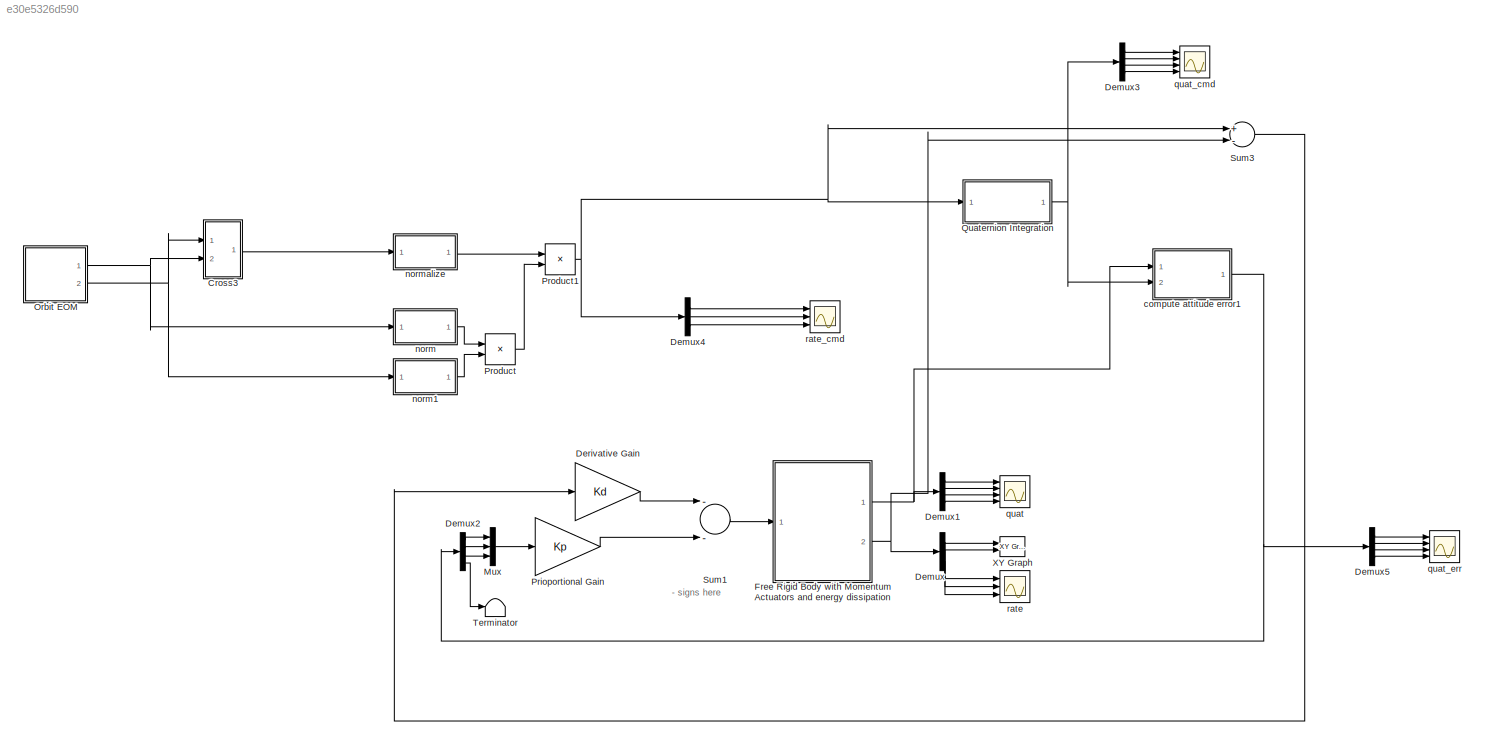
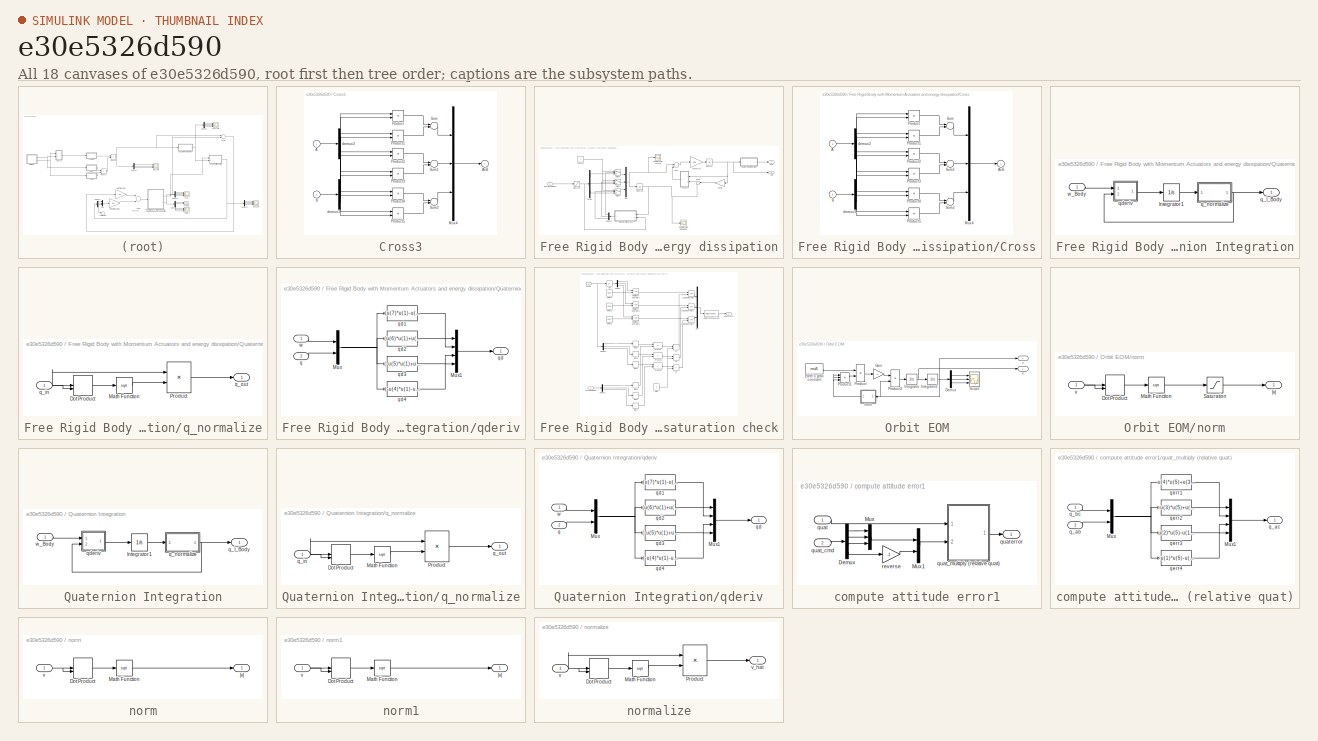
[diagram: thumbnail index - all 18 canvases of the model, root first then tree order]
MODEL slx_e30e5326d590
KIND model
CONFIG AbsTol = auto
CONFIG EnableMultiTasking = on
CONFIG FixedStep = auto
CONFIG MaxStep = auto
CONFIG MinStep = auto
CONFIG RelTol = 1e-6
CONFIG SampleTimeConstraint = Unconstrained
CONFIG Solver = ode45
CONFIG SolverName = ode45
CONFIG StartTime = 0.0
CONFIG StopTime = 20000
WORKSPACE source: external: MATLAB File  (data not in archive)
BLOCK [SubSystem] Cross3
  Ports = [2, 1]
  RequestExecContextInheritance = off
  Variant = off
BLOCK [Inport] Cross3/A
  IconDisplay = Port number
BLOCK [Outport] Cross3/AxB
  IconDisplay = Port number
  InitialOutput = 0
BLOCK [Inport] Cross3/B
  IconDisplay = Port number
  Port = 2
BLOCK [Mux] Cross3/Mux4
  Inputs = 3
  Ports = [3, 1]
BLOCK [Product] Cross3/Product
  Ports = [2, 1]
  RndMeth = Floor
BLOCK [Product] Cross3/Product1
  Ports = [2, 1]
  RndMeth = Floor
BLOCK [Product] Cross3/Product2
  Ports = [2, 1]
  RndMeth = Floor
BLOCK [Product] Cross3/Product3
  Ports = [2, 1]
  RndMeth = Floor
BLOCK [Product] Cross3/Product4
  Ports = [2, 1]
  RndMeth = Floor
BLOCK [Product] Cross3/Product5
  Ports = [2, 1]
  RndMeth = Floor
BLOCK [Sum] Cross3/Sum
  Inputs = +-
  Ports = [2, 1]
BLOCK [Sum] Cross3/Sum1
  Inputs = +-
  Ports = [2, 1]
BLOCK [Sum] Cross3/Sum2
  Inputs = +-
  Ports = [2, 1]
BLOCK [Demux] Cross3/demux2
  Outputs = 3
  Ports = [1, 3]
BLOCK [Demux] Cross3/demux3
  Outputs = 3
  Ports = [1, 3]
BLOCK [Demux] Demux
  DisplayOption = bar
  Outputs = 3
  Ports = [1, 3]
BLOCK [Demux] Demux1
  DisplayOption = bar
  Ports = [1, 4]
BLOCK [Demux] Demux2
  DisplayOption = bar
  Ports = [1, 4]
BLOCK [Demux] Demux3
  DisplayOption = bar
  Ports = [1, 4]
BLOCK [Demux] Demux4
  DisplayOption = bar
  Outputs = 3
  Ports = [1, 3]
BLOCK [Demux] Demux5
  DisplayOption = bar
  Ports = [1, 4]
BLOCK [Gain] Derivative Gain
  Gain = Kd
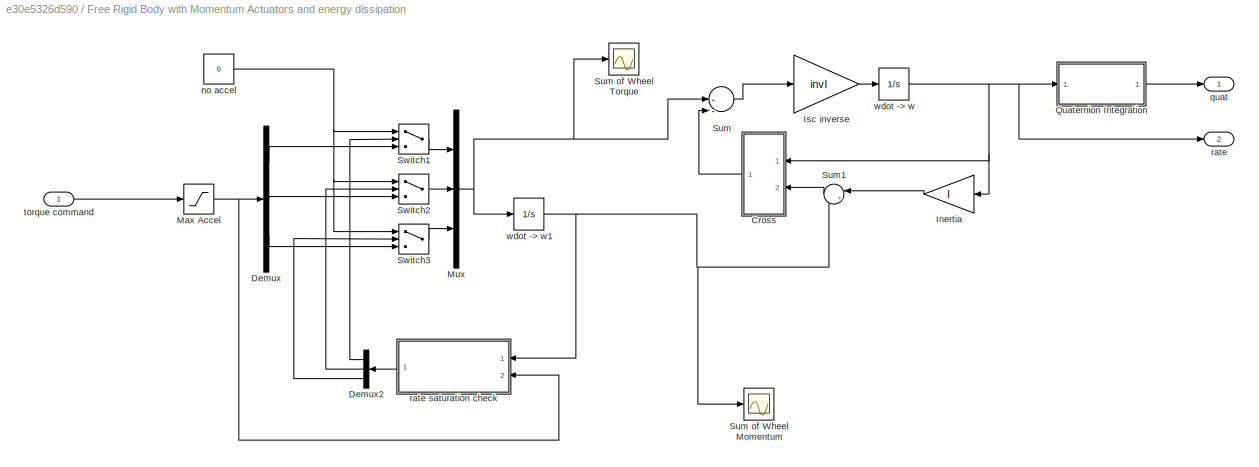
BLOCK [SubSystem] Free Rigid Body with Momentum Actuators and energy dissipation
  Ports = [1, 2]
  RequestExecContextInheritance = off
  Variant = off
BLOCK [SubSystem] Free Rigid Body with Momentum Actuators and energy dissipation/Cross
  Ports = [2, 1]
  RequestExecContextInheritance = off
  Variant = off
BLOCK [Inport] Free Rigid Body with Momentum Actuators and energy dissipation/Cross/A
  IconDisplay = Port number
BLOCK [Outport] Free Rigid Body with Momentum Actuators and energy dissipation/Cross/AxB
  IconDisplay = Port number
  InitialOutput = 0
BLOCK [Inport] Free Rigid Body with Momentum Actuators and energy dissipation/Cross/B
  IconDisplay = Port number
  Port = 2
BLOCK [Mux] Free Rigid Body with Momentum Actuators and energy dissipation/Cross/Mux4
  Inputs = 3
  Ports = [3, 1]
BLOCK [Product] Free Rigid Body with Momentum Actuators and energy dissipation/Cross/Product
  Ports = [2, 1]
  RndMeth = Floor
BLOCK [Product] Free Rigid Body with Momentum Actuators and energy dissipation/Cross/Product1
  Ports = [2, 1]
  RndMeth = Floor
BLOCK [Product] Free Rigid Body with Momentum Actuators and energy dissipation/Cross/Product2
  Ports = [2, 1]
  RndMeth = Floor
BLOCK [Product] Free Rigid Body with Momentum Actuators and energy dissipation/Cross/Product3
  Ports = [2, 1]
  RndMeth = Floor
BLOCK [Product] Free Rigid Body with Momentum Actuators and energy dissipation/Cross/Product4
  Ports = [2, 1]
  RndMeth = Floor
BLOCK [Product] Free Rigid Body with Momentum Actuators and energy dissipation/Cross/Product5
  Ports = [2, 1]
  RndMeth = Floor
BLOCK [Sum] Free Rigid Body with Momentum Actuators and energy dissipation/Cross/Sum
  Inputs = +-
  Ports = [2, 1]
BLOCK [Sum] Free Rigid Body with Momentum Actuators and energy dissipation/Cross/Sum1
  Inputs = +-
  Ports = [2, 1]
BLOCK [Sum] Free Rigid Body with Momentum Actuators and energy dissipation/Cross/Sum2
  Inputs = +-
  Ports = [2, 1]
BLOCK [Demux] Free Rigid Body with Momentum Actuators and energy dissipation/Cross/demux2
  Outputs = 3
  Ports = [1, 3]
BLOCK [Demux] Free Rigid Body with Momentum Actuators and energy dissipation/Cross/demux3
  Outputs = 3
  Ports = [1, 3]
BLOCK [Demux] Free Rigid Body with Momentum Actuators and energy dissipation/Demux
  Outputs = 3
  Ports = [1, 3]
BLOCK [Demux] Free Rigid Body with Momentum Actuators and energy dissipation/Demux2
  Outputs = 3
  Ports = [1, 3]
BLOCK [Gain] Free Rigid Body with Momentum Actuators and energy dissipation/Inertia
  Gain = I
  Multiplication = Matrix(K*u)
BLOCK [Gain] Free Rigid Body with Momentum Actuators and energy dissipation/Isc inverse
  Gain = invI
  Multiplication = Matrix(K*u)
BLOCK [Saturate] Free Rigid Body with Momentum Actuators and energy dissipation/Max Accel
  InputPortMap = u0
  LowerLimit = -accelmax
  Ports = [1, 1]
  UpperLimit = accelmax
BLOCK [Mux] Free Rigid Body with Momentum Actuators and energy dissipation/Mux
  DisplayOption = bar
  Inputs = 3
  Ports = [3, 1]
BLOCK [SubSystem] Free Rigid Body with Momentum Actuators and energy dissipation/Quaternion Integration
  Ports = [1, 1]
  RequestExecContextInheritance = off
  Variant = off
BLOCK [Integrator] Free Rigid Body with Momentum Actuators and energy dissipation/Quaternion Integration/Integrator1
  InitialCondition = q_init
  Ports = [1, 1]
BLOCK [Outport] Free Rigid Body with Momentum Actuators and energy dissipation/Quaternion Integration/q_I_Body
  IconDisplay = Port number
BLOCK [SubSystem] Free Rigid Body with Momentum Actuators and energy dissipation/Quaternion Integration/q_normalize
  Ports = [1, 1]
  RequestExecContextInheritance = off
  Variant = off
BLOCK [DotProduct] Free Rigid Body with Momentum Actuators and energy dissipation/Quaternion Integration/q_normalize/Dot Product
  OutDataTypeStr = Inherit: Inherit via internal rule
BLOCK [Math] Free Rigid Body with Momentum Actuators and energy dissipation/Quaternion Integration/q_normalize/Math Function
  Operator = sqrt
  Ports = [1, 1]
BLOCK [Product] Free Rigid Body with Momentum Actuators and energy dissipation/Quaternion Integration/q_normalize/Product
  Inputs = */
  Ports = [2, 1]
  RndMeth = Floor
BLOCK [Inport] Free Rigid Body with Momentum Actuators and energy dissipation/Quaternion Integration/q_normalize/q_in
  IconDisplay = Port number
  PortDimensions = 4
BLOCK [Outport] Free Rigid Body with Momentum Actuators and energy dissipation/Quaternion Integration/q_normalize/q_out
  IconDisplay = Port number
BLOCK [SubSystem] Free Rigid Body with Momentum Actuators and energy dissipation/Quaternion Integration/qderiv
  Ports = [2, 1]
  RequestExecContextInheritance = off
  Variant = off
BLOCK [Mux] Free Rigid Body with Momentum Actuators and energy dissipation/Quaternion Integration/qderiv/Mux
  DisplayOption = bar
  Inputs = 2
  Ports = [2, 1]
BLOCK [Mux] Free Rigid Body with Momentum Actuators and energy dissipation/Quaternion Integration/qderiv/Mux1
  DisplayOption = bar
  Ports = [4, 1]
BLOCK [Inport] Free Rigid Body with Momentum Actuators and energy dissipation/Quaternion Integration/qderiv/q
  IconDisplay = Port number
  Port = 2
BLOCK [Outport] Free Rigid Body with Momentum Actuators and energy dissipation/Quaternion Integration/qderiv/qd
  IconDisplay = Port number
BLOCK [Fcn] Free Rigid Body with Momentum Actuators and energy dissipation/Quaternion Integration/qderiv/qd1
  Expr = (u(7)*u(1)-u(6)*u(2)+u(5)*u(3))/2
BLOCK [Fcn] Free Rigid Body with Momentum Actuators and energy dissipation/Quaternion Integration/qderiv/qd2
  Expr = (u(6)*u(1)+u(7)*u(2)-u(4)*u(3))/2
BLOCK [Fcn] Free Rigid Body with Momentum Actuators and energy dissipation/Quaternion Integration/qderiv/qd3
  Expr = (-u(5)*u(1)+u(4)*u(2)+u(7)*u(3))/2
BLOCK [Fcn] Free Rigid Body with Momentum Actuators and energy dissipation/Quaternion Integration/qderiv/qd4
  Expr = (-u(4)*u(1)-u(5)*u(2)-u(6)*u(3))/2
BLOCK [Inport] Free Rigid Body with Momentum Actuators and energy dissipation/Quaternion Integration/qderiv/w
  IconDisplay = Port number
BLOCK [Inport] Free Rigid Body with Momentum Actuators and energy dissipation/Quaternion Integration/w_Body
  IconDisplay = Port number
BLOCK [Sum] Free Rigid Body with Momentum Actuators and energy dissipation/Sum
  Inputs = |---
  Ports = [3, 1]
BLOCK [Scope] Free Rigid Body with Momentum Actuators and energy dissipation/Sum of Wheel Momentum
  NumInputPorts = 1
  Ports = [1]
  ScopeSpecificationString = Simulink.scopes.TimeScopeBlockCfg('CurrentConfiguration', extmgr.ConfigurationSet(extmgr.Configuration('Core','General UI',true),extmgr.Configuration('Core','Source UI',true),extmgr.Configuration('Sources','WiredSimulink',true,'DataLoggingVariableName','ScopeData4','DataLoggingSaveFormat','StructureWithTime','DataLoggingDecimation','1','DataLoggingDecimateData',true),extmgr.Configuration('Visuals'...<+1809ch>
BLOCK [Scope] Free Rigid Body with Momentum Actuators and energy dissipation/Sum of Wheel Torque
  NumInputPorts = 1
  Ports = [1]
  ScopeSpecificationString = Simulink.scopes.TimeScopeBlockCfg('CurrentConfiguration', extmgr.ConfigurationSet(extmgr.Configuration('Core','General UI',true),extmgr.Configuration('Core','Source UI',true),extmgr.Configuration('Sources','WiredSimulink',true,'DataLoggingVariableName','ScopeData3','DataLoggingSaveFormat','StructureWithTime','DataLoggingDecimation','1','DataLoggingDecimateData',true),extmgr.Configuration('Visuals'...<+1752ch>
BLOCK [Sum] Free Rigid Body with Momentum Actuators and energy dissipation/Sum1
  IconShape = round
  Inputs = |++
  Ports = [2, 1]
BLOCK [Switch] Free Rigid Body with Momentum Actuators and energy dissipation/Switch1
  Threshold = 0.5
BLOCK [Switch] Free Rigid Body with Momentum Actuators and energy dissipation/Switch2
  Threshold = 0.5
BLOCK [Switch] Free Rigid Body with Momentum Actuators and energy dissipation/Switch3
  Threshold = 0.5
BLOCK [Constant] Free Rigid Body with Momentum Actuators and energy dissipation/no accel
  Value = 0
BLOCK [Outport] Free Rigid Body with Momentum Actuators and energy dissipation/quat
  IconDisplay = Port number
BLOCK [Outport] Free Rigid Body with Momentum Actuators and energy dissipation/rate
  IconDisplay = Port number
  Port = 2
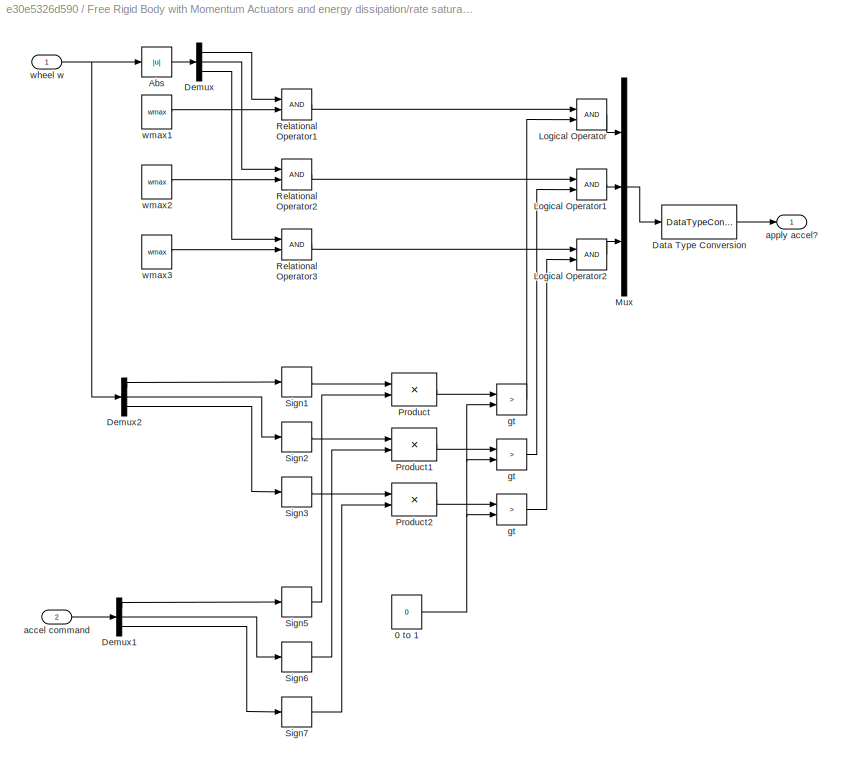
BLOCK [SubSystem] Free Rigid Body with Momentum Actuators and energy dissipation/rate saturation check
  Ports = [2, 1]
  RequestExecContextInheritance = off
  Variant = off
BLOCK [Constant] Free Rigid Body with Momentum Actuators and energy dissipation/rate saturation check/0 to 1
  Value = 0
  VectorParams1D = off
BLOCK [Abs] Free Rigid Body with Momentum Actuators and energy dissipation/rate saturation check/Abs
BLOCK [DataTypeConversion] Free Rigid Body with Momentum Actuators and energy dissipation/rate saturation check/Data Type Conversion
  RndMeth = Floor
  SaturateOnIntegerOverflow = off
BLOCK [Demux] Free Rigid Body with Momentum Actuators and energy dissipation/rate saturation check/Demux
  Outputs = 3
  Ports = [1, 3]
BLOCK [Demux] Free Rigid Body with Momentum Actuators and energy dissipation/rate saturation check/Demux1
  Outputs = 3
  Ports = [1, 3]
BLOCK [Demux] Free Rigid Body with Momentum Actuators and energy dissipation/rate saturation check/Demux2
  Outputs = 3
  Ports = [1, 3]
BLOCK [Logic] Free Rigid Body with Momentum Actuators and energy dissipation/rate saturation check/Logical Operator
  Ports = [2, 1]
BLOCK [Logic] Free Rigid Body with Momentum Actuators and energy dissipation/rate saturation check/Logical Operator1
  Ports = [2, 1]
BLOCK [Logic] Free Rigid Body with Momentum Actuators and energy dissipation/rate saturation check/Logical Operator2
  Ports = [2, 1]
BLOCK [Mux] Free Rigid Body with Momentum Actuators and energy dissipation/rate saturation check/Mux
  DisplayOption = bar
  Inputs = 3
  Ports = [3, 1]
BLOCK [Product] Free Rigid Body with Momentum Actuators and energy dissipation/rate saturation check/Product
  Ports = [2, 1]
  RndMeth = Floor
BLOCK [Product] Free Rigid Body with Momentum Actuators and energy dissipation/rate saturation check/Product1
  Ports = [2, 1]
  RndMeth = Floor
BLOCK [Product] Free Rigid Body with Momentum Actuators and energy dissipation/rate saturation check/Product2
  Ports = [2, 1]
  RndMeth = Floor
BLOCK [RelationalOperator] Free Rigid Body with Momentum Actuators and energy dissipation/rate saturation check/Relational Operator1
  Ports = [2, 1]
BLOCK [RelationalOperator] Free Rigid Body with Momentum Actuators and energy dissipation/rate saturation check/Relational Operator2
  Ports = [2, 1]
BLOCK [RelationalOperator] Free Rigid Body with Momentum Actuators and energy dissipation/rate saturation check/Relational Operator3
  Ports = [2, 1]
BLOCK [Signum] Free Rigid Body with Momentum Actuators and energy dissipation/rate saturation check/Sign1
BLOCK [Signum] Free Rigid Body with Momentum Actuators and energy dissipation/rate saturation check/Sign2
BLOCK [Signum] Free Rigid Body with Momentum Actuators and energy dissipation/rate saturation check/Sign3
BLOCK [Signum] Free Rigid Body with Momentum Actuators and energy dissipation/rate saturation check/Sign5
BLOCK [Signum] Free Rigid Body with Momentum Actuators and energy dissipation/rate saturation check/Sign6
BLOCK [Signum] Free Rigid Body with Momentum Actuators and energy dissipation/rate saturation check/Sign7
BLOCK [Inport] Free Rigid Body with Momentum Actuators and energy dissipation/rate saturation check/accel command
  IconDisplay = Port number
  Port = 2
BLOCK [Outport] Free Rigid Body with Momentum Actuators and energy dissipation/rate saturation check/apply accel?
  IconDisplay = Port number
BLOCK [RelationalOperator] Free Rigid Body with Momentum Actuators and energy dissipation/rate saturation check/gt
  Operator = >
  Ports = [2, 1]
BLOCK [RelationalOperator] Free Rigid Body with Momentum Actuators and energy dissipation/rate saturation check/gt 
  Operator = >
  Ports = [2, 1]
BLOCK [RelationalOperator] Free Rigid Body with Momentum Actuators and energy dissipation/rate saturation check/gt  
  Operator = >
  Ports = [2, 1]
BLOCK [Inport] Free Rigid Body with Momentum Actuators and energy dissipation/rate saturation check/wheel w
  IconDisplay = Port number
BLOCK [Constant] Free Rigid Body with Momentum Actuators and energy dissipation/rate saturation check/wmax1
  Value = wmax
  VectorParams1D = off
BLOCK [Constant] Free Rigid Body with Momentum Actuators and energy dissipation/rate saturation check/wmax2
  Value = wmax
  VectorParams1D = off
BLOCK [Constant] Free Rigid Body with Momentum Actuators and energy dissipation/rate saturation check/wmax3
  Value = wmax
  VectorParams1D = off
BLOCK [Inport] Free Rigid Body with Momentum Actuators and energy dissipation/torque command
  IconDisplay = Port number
BLOCK [Integrator] Free Rigid Body with Momentum Actuators and energy dissipation/wdot -> w
  InitialCondition = wbn_init
  Ports = [1, 1]
BLOCK [Integrator] Free Rigid Body with Momentum Actuators and energy dissipation/wdot -> w1
  InitialCondition = ww0
  Ports = [1, 1]
BLOCK [Mux] Mux
  DisplayOption = bar
  Inputs = 3
  Ports = [3, 1]
BLOCK [SubSystem] Orbit EOM
  Ports = [0, 2]
  RequestExecContextInheritance = off
  Variant = off
BLOCK [Demux] Orbit EOM/Demux
  Outputs = 3
  Ports = [1, 3]
BLOCK [Constant] Orbit EOM/Earth's grav constant
  Value = muE
BLOCK [Gain] Orbit EOM/Gain
  Gain = -1
BLOCK [Integrator] Orbit EOM/Integrator
  InitialCondition = v_FWR
  Ports = [1, 1]
BLOCK [Integrator] Orbit EOM/Integrator1
  InitialCondition = r_FWR
  Ports = [1, 1]
BLOCK [Product] Orbit EOM/Product
  InputSameDT = off
  Inputs = */
  Ports = [2, 1]
  RndMeth = Floor
BLOCK [Product] Orbit EOM/Product1
  InputSameDT = off
  Inputs = ***
  Ports = [3, 1]
  RndMeth = Floor
BLOCK [Product] Orbit EOM/Product2
  InputSameDT = off
  Inputs = **
  Ports = [2, 1]
  RndMeth = Floor
BLOCK [Scope] Orbit EOM/Scope
  NumInputPorts = 3
  Ports = [3]
  ScopeSpecificationString = C++SS(StrPVP('Location','[194, 516, 977, 894]'),StrPVP('Open','off'),MxPVP('AxesTitles',53,'struct(''axes1'',''%<SignalLabel>'',''axes2'',''%<SignalLabel>'',''axes3'',''%<SignalLabel>'')'),StrPVP('YMin','-5~-5~-5'),StrPVP('YMax','5~5~5'),StrPVP('DataFormat','StructureWithTime'),StrPVP('LimitDataPoints','off'),StrPVP('Decimation','1'),StrPVP('BlockParamSampleInput','off'))
BLOCK [SubSystem] Orbit EOM/norm
  Ports = [1, 1]
  RequestExecContextInheritance = off
  Variant = off
BLOCK [DotProduct] Orbit EOM/norm/Dot Product
  OutDataTypeStr = Inherit: Inherit via internal rule
BLOCK [Math] Orbit EOM/norm/Math Function
  Operator = sqrt
  Ports = [1, 1]
BLOCK [Saturate] Orbit EOM/norm/Saturation
  InputPortMap = u0
  LowerLimit = 1e-10
  Ports = [1, 1]
  UpperLimit = 1e20
BLOCK [Inport] Orbit EOM/norm/v
  IconDisplay = Port number
BLOCK [Outport] Orbit EOM/norm/|v|
  IconDisplay = Port number
BLOCK [Outport] Orbit EOM/r
  IconDisplay = Port number
BLOCK [Outport] Orbit EOM/v
  IconDisplay = Port number
  Port = 2
BLOCK [Gain] Prioportional Gain
  Gain = Kp
BLOCK [Product] Product
  InputSameDT = off
  Inputs = /*
  OutDataTypeStr = Inherit: Inherit via internal rule
  Ports = [2, 1]
  RndMeth = Floor
  SaturateOnIntegerOverflow = off
BLOCK [Product] Product1
  InputSameDT = off
  OutDataTypeStr = Inherit: Inherit via internal rule
  Ports = [2, 1]
  RndMeth = Floor
  SaturateOnIntegerOverflow = off
BLOCK [SubSystem] Quaternion Integration
  Ports = [1, 1]
  RequestExecContextInheritance = off
  Variant = off
BLOCK [Integrator] Quaternion Integration/Integrator1
  InitialCondition = q_init
  Ports = [1, 1]
BLOCK [Outport] Quaternion Integration/q_I_Body
  IconDisplay = Port number
BLOCK [SubSystem] Quaternion Integration/q_normalize
  Ports = [1, 1]
  RequestExecContextInheritance = off
  Variant = off
BLOCK [DotProduct] Quaternion Integration/q_normalize/Dot Product
  OutDataTypeStr = Inherit: Inherit via internal rule
BLOCK [Math] Quaternion Integration/q_normalize/Math Function
  Operator = sqrt
  Ports = [1, 1]
BLOCK [Product] Quaternion Integration/q_normalize/Product
  Inputs = */
  Ports = [2, 1]
  RndMeth = Floor
BLOCK [Inport] Quaternion Integration/q_normalize/q_in
  IconDisplay = Port number
  PortDimensions = 4
BLOCK [Outport] Quaternion Integration/q_normalize/q_out
  IconDisplay = Port number
BLOCK [SubSystem] Quaternion Integration/qderiv
  Ports = [2, 1]
  RequestExecContextInheritance = off
  Variant = off
BLOCK [Mux] Quaternion Integration/qderiv/Mux
  DisplayOption = bar
  Inputs = 2
  Ports = [2, 1]
BLOCK [Mux] Quaternion Integration/qderiv/Mux1
  DisplayOption = bar
  Ports = [4, 1]
BLOCK [Inport] Quaternion Integration/qderiv/q
  IconDisplay = Port number
  Port = 2
BLOCK [Outport] Quaternion Integration/qderiv/qd
  IconDisplay = Port number
BLOCK [Fcn] Quaternion Integration/qderiv/qd1
  Expr = (u(7)*u(1)-u(6)*u(2)+u(5)*u(3))/2
BLOCK [Fcn] Quaternion Integration/qderiv/qd2
  Expr = (u(6)*u(1)+u(7)*u(2)-u(4)*u(3))/2
BLOCK [Fcn] Quaternion Integration/qderiv/qd3
  Expr = (-u(5)*u(1)+u(4)*u(2)+u(7)*u(3))/2
BLOCK [Fcn] Quaternion Integration/qderiv/qd4
  Expr = (-u(4)*u(1)-u(5)*u(2)-u(6)*u(3))/2
BLOCK [Inport] Quaternion Integration/qderiv/w
  IconDisplay = Port number
BLOCK [Inport] Quaternion Integration/w_Body
  IconDisplay = Port number
BLOCK [Sum] Sum1
  Inputs = --
  Ports = [2, 1]
BLOCK [Sum] Sum3
  Inputs = +-
  Ports = [2, 1]
BLOCK [Terminator] Terminator
BLOCK [Reference] XY Graph  REF=simulink/Sinks/XY Graph
  Ports = [2]
  SourceBlock = simulink/Sinks/XY Graph
  SourceProductBaseCode = SL
  SourceProductName = Simulink
  SourceType = XY scope.
BLOCK [SubSystem] compute attitude error1
  Ports = [2, 1]
  RequestExecContextInheritance = off
  Variant = off
BLOCK [Demux] compute attitude error1/Demux
  Ports = [1, 4]
BLOCK [Mux] compute attitude error1/Mux
  DisplayOption = bar
  Inputs = 3
  Ports = [3, 1]
BLOCK [Mux] compute attitude error1/Mux1
  DisplayOption = bar
  Inputs = 2
  Ports = [2, 1]
BLOCK [Inport] compute attitude error1/quat
  IconDisplay = Port number
BLOCK [Outport] compute attitude error1/quat error
  IconDisplay = Port number
BLOCK [Inport] compute attitude error1/quat_cmd
  IconDisplay = Port number
  Port = 2
BLOCK [SubSystem] compute attitude error1/quat_multiply (relative quat)
  Ports = [2, 1]
  RequestExecContextInheritance = off
  Variant = off
BLOCK [Mux] compute attitude error1/quat_multiply (relative quat)/Mux
  DisplayOption = bar
  Inputs = 2
  Ports = [2, 1]
BLOCK [Mux] compute attitude error1/quat_multiply (relative quat)/Mux1
  DisplayOption = bar
  Ports = [4, 1]
BLOCK [Inport] compute attitude error1/quat_multiply (relative quat)/q_ab
  IconDisplay = Port number
  Port = 2
BLOCK [Outport] compute attitude error1/quat_multiply (relative quat)/q_ac
  IconDisplay = Port number
BLOCK [Inport] compute attitude error1/quat_multiply (relative quat)/q_bc
  IconDisplay = Port number
BLOCK [Fcn] compute attitude error1/quat_multiply (relative quat)/qerr1
  Expr = u(4)*u(5)+u(3)*u(6)-u(2)*u(7)+u(1)*u(8)
BLOCK [Fcn] compute attitude error1/quat_multiply (relative quat)/qerr2
  Expr = -u(3)*u(5)+u(4)*u(6)+u(1)*u(7)+u(2)*u(8)
BLOCK [Fcn] compute attitude error1/quat_multiply (relative quat)/qerr3
  Expr = u(2)*u(5)-u(1)*u(6)+u(4)*u(7)+u(3)*u(8)
BLOCK [Fcn] compute attitude error1/quat_multiply (relative quat)/qerr4
  Expr = -u(1)*u(5)-u(2)*u(6)-u(3)*u(7)+u(4)*u(8)
BLOCK [Gain] compute attitude error1/reverse
  Gain = -1
BLOCK [SubSystem] norm
  Ports = [1, 1]
  RequestExecContextInheritance = off
  Variant = off
BLOCK [DotProduct] norm/Dot Product
  OutDataTypeStr = Inherit: Inherit via internal rule
BLOCK [Math] norm/Math Function
  Operator = sqrt
  Ports = [1, 1]
BLOCK [Inport] norm/v
  IconDisplay = Port number
BLOCK [Outport] norm/|v|
  IconDisplay = Port number
BLOCK [SubSystem] norm1
  Ports = [1, 1]
  RequestExecContextInheritance = off
  Variant = off
BLOCK [DotProduct] norm1/Dot Product
  OutDataTypeStr = Inherit: Inherit via internal rule
BLOCK [Math] norm1/Math Function
  Operator = sqrt
  Ports = [1, 1]
BLOCK [Inport] norm1/v
  IconDisplay = Port number
BLOCK [Outport] norm1/|v|
  IconDisplay = Port number
BLOCK [SubSystem] normalize
  Ports = [1, 1]
  RequestExecContextInheritance = off
  Variant = off
BLOCK [DotProduct] normalize/Dot Product
  OutDataTypeStr = Inherit: Inherit via internal rule
BLOCK [Math] normalize/Math Function
  Operator = sqrt
  Ports = [1, 1]
BLOCK [Product] normalize/Product
  Inputs = */
  Ports = [2, 1]
  RndMeth = Floor
BLOCK [Inport] normalize/v
  IconDisplay = Port number
BLOCK [Outport] normalize/v_hat
  IconDisplay = Port number
BLOCK [Scope] quat
  NumInputPorts = 4
  Ports = [4]
  ScopeSpecificationString = Simulink.scopes.TimeScopeBlockCfg('CurrentConfiguration', extmgr.ConfigurationSet(extmgr.Configuration('Core','General UI',true),extmgr.Configuration('Core','Source UI',true),extmgr.Configuration('Sources','WiredSimulink',true,'DataLoggingVariableName','ScopeData1','DataLoggingSaveFormat','StructureWithTime','DataLoggingDecimation','1','DataLoggingDecimateData',true),extmgr.Configuration('Visuals'...<+3772ch>
BLOCK [Scope] quat_cmd
  NumInputPorts = 4
  Ports = [4]
  ScopeSpecificationString = Simulink.scopes.TimeScopeBlockCfg('CurrentConfiguration', extmgr.ConfigurationSet(extmgr.Configuration('Core','General UI',true),extmgr.Configuration('Core','Source UI',true),extmgr.Configuration('Sources','WiredSimulink',true,'DataLoggingVariableName','ScopeData2','DataLoggingSaveFormat','StructureWithTime','DataLoggingDecimation','1','DataLoggingDecimateData',true),extmgr.Configuration('Visuals'...<+3791ch>
BLOCK [Scope] quat_err
  NumInputPorts = 4
  Ports = [4]
  ScopeSpecificationString = Simulink.scopes.TimeScopeBlockCfg('CurrentConfiguration', extmgr.ConfigurationSet(extmgr.Configuration('Core','General UI',true),extmgr.Configuration('Core','Source UI',true),extmgr.Configuration('Sources','WiredSimulink',true,'DataLoggingVariableName','ScopeData2','DataLoggingSaveFormat','StructureWithTime','DataLoggingDecimation','1','DataLoggingDecimateData',true),extmgr.Configuration('Visuals'...<+3768ch>
BLOCK [Scope] rate
  NumInputPorts = 3
  Ports = [3]
  ScopeSpecificationString = Simulink.scopes.TimeScopeBlockCfg('CurrentConfiguration', extmgr.ConfigurationSet(extmgr.Configuration('Core','General UI',true),extmgr.Configuration('Core','Source UI',true),extmgr.Configuration('Sources','WiredSimulink',true,'DataLoggingSaveFormat','StructureWithTime','DataLoggingDecimation','1','DataLoggingDecimateData',true),extmgr.Configuration('Visuals','Time Domain',true,'SerializedDisplays...<+3023ch>
BLOCK [Scope] rate_cmd
  NumInputPorts = 3
  Ports = [3]
  ScopeSpecificationString = Simulink.scopes.TimeScopeBlockCfg('CurrentConfiguration', extmgr.ConfigurationSet(extmgr.Configuration('Core','General UI',true),extmgr.Configuration('Core','Source UI',true),extmgr.Configuration('Sources','WiredSimulink',true,'DataLoggingSaveFormat','StructureWithTime','DataLoggingDecimation','1','DataLoggingDecimateData',true,'DataLoggingVariableName','ScopeData1'),extmgr.Configuration('Visuals'...<+3040ch>
ANNOTATION (root): - signs here
LINE Cross3/A:1 -> Cross3/demux2:1
LINE Cross3/B:1 -> Cross3/demux3:1
LINE Cross3/Mux4:1 -> Cross3/AxB:1
LINE Cross3/Product1:1 -> Cross3/Sum:2
LINE Cross3/Product2:1 -> Cross3/Sum1:1
LINE Cross3/Product3:1 -> Cross3/Sum1:2
LINE Cross3/Product4:1 -> Cross3/Sum2:1
LINE Cross3/Product5:1 -> Cross3/Sum2:2
LINE Cross3/Product:1 -> Cross3/Sum:1
LINE Cross3/Sum1:1 -> Cross3/Mux4:2
LINE Cross3/Sum2:1 -> Cross3/Mux4:3
LINE Cross3/Sum:1 -> Cross3/Mux4:1
NET Cross3/demux2:1 -> Cross3/Product3:1, Cross3/Product4:1
NET Cross3/demux2:2 -> Cross3/Product5:1, Cross3/Product:1
NET Cross3/demux2:3 -> Cross3/Product1:1, Cross3/Product2:1
NET Cross3/demux3:1 -> Cross3/Product2:2, Cross3/Product5:2
NET Cross3/demux3:2 -> Cross3/Product1:2, Cross3/Product4:2
NET Cross3/demux3:3 -> Cross3/Product3:2, Cross3/Product:2
LINE Cross3:1 -> normalize:1
LINE Demux1:1 -> quat:1
LINE Demux1:2 -> quat:2
LINE Demux1:3 -> quat:3
LINE Demux1:4 -> quat:4
LINE Demux2:1 -> Mux:1
LINE Demux2:2 -> Mux:2
LINE Demux2:3 -> Mux:3
LINE Demux2:4 -> Terminator:1
LINE Demux3:1 -> quat_cmd:1
LINE Demux3:2 -> quat_cmd:2
LINE Demux3:3 -> quat_cmd:3
LINE Demux3:4 -> quat_cmd:4
LINE Demux4:1 -> rate_cmd:1
LINE Demux4:2 -> rate_cmd:2
LINE Demux4:3 -> rate_cmd:3
LINE Demux5:1 -> quat_err:1
LINE Demux5:2 -> quat_err:2
LINE Demux5:3 -> quat_err:3
LINE Demux5:4 -> quat_err:4
NET Demux:1 -> XY Graph:1, rate:1
NET Demux:2 -> XY Graph:2, rate:2
LINE Demux:3 -> rate:3
LINE Derivative Gain:1 -> Sum1:1
LINE Free Rigid Body with Momentum Actuators and energy dissipation/Cross/A:1 -> Free Rigid Body with Momentum Actuators and energy dissipation/Cross/demux2:1
LINE Free Rigid Body with Momentum Actuators and energy dissipation/Cross/B:1 -> Free Rigid Body with Momentum Actuators and energy dissipation/Cross/demux3:1
LINE Free Rigid Body with Momentum Actuators and energy dissipation/Cross/Mux4:1 -> Free Rigid Body with Momentum Actuators and energy dissipation/Cross/AxB:1
LINE Free Rigid Body with Momentum Actuators and energy dissipation/Cross/Product1:1 -> Free Rigid Body with Momentum Actuators and energy dissipation/Cross/Sum:2
LINE Free Rigid Body with Momentum Actuators and energy dissipation/Cross/Product2:1 -> Free Rigid Body with Momentum Actuators and energy dissipation/Cross/Sum1:1
LINE Free Rigid Body with Momentum Actuators and energy dissipation/Cross/Product3:1 -> Free Rigid Body with Momentum Actuators and energy dissipation/Cross/Sum1:2
LINE Free Rigid Body with Momentum Actuators and energy dissipation/Cross/Product4:1 -> Free Rigid Body with Momentum Actuators and energy dissipation/Cross/Sum2:1
LINE Free Rigid Body with Momentum Actuators and energy dissipation/Cross/Product5:1 -> Free Rigid Body with Momentum Actuators and energy dissipation/Cross/Sum2:2
LINE Free Rigid Body with Momentum Actuators and energy dissipation/Cross/Product:1 -> Free Rigid Body with Momentum Actuators and energy dissipation/Cross/Sum:1
LINE Free Rigid Body with Momentum Actuators and energy dissipation/Cross/Sum1:1 -> Free Rigid Body with Momentum Actuators and energy dissipation/Cross/Mux4:2
LINE Free Rigid Body with Momentum Actuators and energy dissipation/Cross/Sum2:1 -> Free Rigid Body with Momentum Actuators and energy dissipation/Cross/Mux4:3
LINE Free Rigid Body with Momentum Actuators and energy dissipation/Cross/Sum:1 -> Free Rigid Body with Momentum Actuators and energy dissipation/Cross/Mux4:1
NET Free Rigid Body with Momentum Actuators and energy dissipation/Cross/demux2:1 -> Free Rigid Body with Momentum Actuators and energy dissipation/Cross/Product3:1, Free Rigid Body with Momentum Actuators and energy dissipation/Cross/Product4:1
NET Free Rigid Body with Momentum Actuators and energy dissipation/Cross/demux2:2 -> Free Rigid Body with Momentum Actuators and energy dissipation/Cross/Product5:1, Free Rigid Body with Momentum Actuators and energy dissipation/Cross/Product:1
NET Free Rigid Body with Momentum Actuators and energy dissipation/Cross/demux2:3 -> Free Rigid Body with Momentum Actuators and energy dissipation/Cross/Product1:1, Free Rigid Body with Momentum Actuators and energy dissipation/Cross/Product2:1
NET Free Rigid Body with Momentum Actuators and energy dissipation/Cross/demux3:1 -> Free Rigid Body with Momentum Actuators and energy dissipation/Cross/Product2:2, Free Rigid Body with Momentum Actuators and energy dissipation/Cross/Product5:2
NET Free Rigid Body with Momentum Actuators and energy dissipation/Cross/demux3:2 -> Free Rigid Body with Momentum Actuators and energy dissipation/Cross/Product1:2, Free Rigid Body with Momentum Actuators and energy dissipation/Cross/Product4:2
NET Free Rigid Body with Momentum Actuators and energy dissipation/Cross/demux3:3 -> Free Rigid Body with Momentum Actuators and energy dissipation/Cross/Product3:2, Free Rigid Body with Momentum Actuators and energy dissipation/Cross/Product:2
LINE Free Rigid Body with Momentum Actuators and energy dissipation/Cross:1 -> Free Rigid Body with Momentum Actuators and energy dissipation/Sum:3
LINE Free Rigid Body with Momentum Actuators and energy dissipation/Demux2:1 -> Free Rigid Body with Momentum Actuators and energy dissipation/Switch1:2
LINE Free Rigid Body with Momentum Actuators and energy dissipation/Demux2:2 -> Free Rigid Body with Momentum Actuators and energy dissipation/Switch2:2
LINE Free Rigid Body with Momentum Actuators and energy dissipation/Demux2:3 -> Free Rigid Body with Momentum Actuators and energy dissipation/Switch3:2
LINE Free Rigid Body with Momentum Actuators and energy dissipation/Demux:1 -> Free Rigid Body with Momentum Actuators and energy dissipation/Switch1:3
LINE Free Rigid Body with Momentum Actuators and energy dissipation/Demux:2 -> Free Rigid Body with Momentum Actuators and energy dissipation/Switch2:3
LINE Free Rigid Body with Momentum Actuators and energy dissipation/Demux:3 -> Free Rigid Body with Momentum Actuators and energy dissipation/Switch3:3
LINE Free Rigid Body with Momentum Actuators and energy dissipation/Inertia:1 -> Free Rigid Body with Momentum Actuators and energy dissipation/Sum1:1
LINE Free Rigid Body with Momentum Actuators and energy dissipation/Isc inverse:1 -> Free Rigid Body with Momentum Actuators and energy dissipation/wdot -> w:1
NET Free Rigid Body with Momentum Actuators and energy dissipation/Max Accel:1 -> Free Rigid Body with Momentum Actuators and energy dissipation/Demux:1, Free Rigid Body with Momentum Actuators and energy dissipation/rate saturation check:2
NET Free Rigid Body with Momentum Actuators and energy dissipation/Mux:1 -> Free Rigid Body with Momentum Actuators and energy dissipation/Sum of Wheel Torque:1, Free Rigid Body with Momentum Actuators and energy dissipation/Sum:2, Free Rigid Body with Momentum Actuators and energy dissipation/wdot -> w1:1
LINE Free Rigid Body with Momentum Actuators and energy dissipation/Quaternion Integration/Integrator1:1 -> Free Rigid Body with Momentum Actuators and energy dissipation/Quaternion Integration/q_normalize:1
LINE Free Rigid Body with Momentum Actuators and energy dissipation/Quaternion Integration/q_normalize/Dot Product:1 -> Free Rigid Body with Momentum Actuators and energy dissipation/Quaternion Integration/q_normalize/Math Function:1
LINE Free Rigid Body with Momentum Actuators and energy dissipation/Quaternion Integration/q_normalize/Math Function:1 -> Free Rigid Body with Momentum Actuators and energy dissipation/Quaternion Integration/q_normalize/Product:2
LINE Free Rigid Body with Momentum Actuators and energy dissipation/Quaternion Integration/q_normalize/Product:1 -> Free Rigid Body with Momentum Actuators and energy dissipation/Quaternion Integration/q_normalize/q_out:1
NET Free Rigid Body with Momentum Actuators and energy dissipation/Quaternion Integration/q_normalize/q_in:1 -> Free Rigid Body with Momentum Actuators and energy dissipation/Quaternion Integration/q_normalize/Dot Product:1, Free Rigid Body with Momentum Actuators and energy dissipation/Quaternion Integration/q_normalize/Dot Product:2, Free Rigid Body with Momentum Actuators and energy dissipation/Quaternion Integration/q_normalize/Product:1
NET Free Rigid Body with Momentum Actuators and energy dissipation/Quaternion Integration/q_normalize:1 -> Free Rigid Body with Momentum Actuators and energy dissipation/Quaternion Integration/q_I_Body:1, Free Rigid Body with Momentum Actuators and energy dissipation/Quaternion Integration/qderiv:2
LINE Free Rigid Body with Momentum Actuators and energy dissipation/Quaternion Integration/qderiv/Mux1:1 -> Free Rigid Body with Momentum Actuators and energy dissipation/Quaternion Integration/qderiv/qd:1
NET Free Rigid Body with Momentum Actuators and energy dissipation/Quaternion Integration/qderiv/Mux:1 -> Free Rigid Body with Momentum Actuators and energy dissipation/Quaternion Integration/qderiv/qd1:1, Free Rigid Body with Momentum Actuators and energy dissipation/Quaternion Integration/qderiv/qd2:1, Free Rigid Body with Momentum Actuators and energy dissipation/Quaternion Integration/qderiv/qd3:1, Free Rigid Body with Momentum Actuators and energy dissipation/Quaternion Integration/qderiv/qd4:1
LINE Free Rigid Body with Momentum Actuators and energy dissipation/Quaternion Integration/qderiv/q:1 -> Free Rigid Body with Momentum Actuators and energy dissipation/Quaternion Integration/qderiv/Mux:2
LINE Free Rigid Body with Momentum Actuators and energy dissipation/Quaternion Integration/qderiv/qd1:1 -> Free Rigid Body with Momentum Actuators and energy dissipation/Quaternion Integration/qderiv/Mux1:1
LINE Free Rigid Body with Momentum Actuators and energy dissipation/Quaternion Integration/qderiv/qd2:1 -> Free Rigid Body with Momentum Actuators and energy dissipation/Quaternion Integration/qderiv/Mux1:2
LINE Free Rigid Body with Momentum Actuators and energy dissipation/Quaternion Integration/qderiv/qd3:1 -> Free Rigid Body with Momentum Actuators and energy dissipation/Quaternion Integration/qderiv/Mux1:3
LINE Free Rigid Body with Momentum Actuators and energy dissipation/Quaternion Integration/qderiv/qd4:1 -> Free Rigid Body with Momentum Actuators and energy dissipation/Quaternion Integration/qderiv/Mux1:4
LINE Free Rigid Body with Momentum Actuators and energy dissipation/Quaternion Integration/qderiv/w:1 -> Free Rigid Body with Momentum Actuators and energy dissipation/Quaternion Integration/qderiv/Mux:1
LINE Free Rigid Body with Momentum Actuators and energy dissipation/Quaternion Integration/qderiv:1 -> Free Rigid Body with Momentum Actuators and energy dissipation/Quaternion Integration/Integrator1:1
LINE Free Rigid Body with Momentum Actuators and energy dissipation/Quaternion Integration/w_Body:1 -> Free Rigid Body with Momentum Actuators and energy dissipation/Quaternion Integration/qderiv:1
LINE Free Rigid Body with Momentum Actuators and energy dissipation/Quaternion Integration:1 -> Free Rigid Body with Momentum Actuators and energy dissipation/quat:1
LINE Free Rigid Body with Momentum Actuators and energy dissipation/Sum1:1 -> Free Rigid Body with Momentum Actuators and energy dissipation/Cross:2
LINE Free Rigid Body with Momentum Actuators and energy dissipation/Sum:1 -> Free Rigid Body with Momentum Actuators and energy dissipation/Isc inverse:1
LINE Free Rigid Body with Momentum Actuators and energy dissipation/Switch1:1 -> Free Rigid Body with Momentum Actuators and energy dissipation/Mux:1
LINE Free Rigid Body with Momentum Actuators and energy dissipation/Switch2:1 -> Free Rigid Body with Momentum Actuators and energy dissipation/Mux:2
LINE Free Rigid Body with Momentum Actuators and energy dissipation/Switch3:1 -> Free Rigid Body with Momentum Actuators and energy dissipation/Mux:3
NET Free Rigid Body with Momentum Actuators and energy dissipation/no accel:1 -> Free Rigid Body with Momentum Actuators and energy dissipation/Switch1:1, Free Rigid Body with Momentum Actuators and energy dissipation/Switch2:1, Free Rigid Body with Momentum Actuators and energy dissipation/Switch3:1
NET Free Rigid Body with Momentum Actuators and energy dissipation/rate saturation check/0 to 1:1 -> Free Rigid Body with Momentum Actuators and energy dissipation/rate saturation check/gt  :2, Free Rigid Body with Momentum Actuators and energy dissipation/rate saturation check/gt :2, Free Rigid Body with Momentum Actuators and energy dissipation/rate saturation check/gt:2
LINE Free Rigid Body with Momentum Actuators and energy dissipation/rate saturation check/Abs:1 -> Free Rigid Body with Momentum Actuators and energy dissipation/rate saturation check/Demux:1
LINE Free Rigid Body with Momentum Actuators and energy dissipation/rate saturation check/Data Type Conversion:1 -> Free Rigid Body with Momentum Actuators and energy dissipation/rate saturation check/apply accel?:1
LINE Free Rigid Body with Momentum Actuators and energy dissipation/rate saturation check/Demux1:1 -> Free Rigid Body with Momentum Actuators and energy dissipation/rate saturation check/Sign5:1
LINE Free Rigid Body with Momentum Actuators and energy dissipation/rate saturation check/Demux1:2 -> Free Rigid Body with Momentum Actuators and energy dissipation/rate saturation check/Sign6:1
LINE Free Rigid Body with Momentum Actuators and energy dissipation/rate saturation check/Demux1:3 -> Free Rigid Body with Momentum Actuators and energy dissipation/rate saturation check/Sign7:1
LINE Free Rigid Body with Momentum Actuators and energy dissipation/rate saturation check/Demux2:1 -> Free Rigid Body with Momentum Actuators and energy dissipation/rate saturation check/Sign1:1
LINE Free Rigid Body with Momentum Actuators and energy dissipation/rate saturation check/Demux2:2 -> Free Rigid Body with Momentum Actuators and energy dissipation/rate saturation check/Sign2:1
LINE Free Rigid Body with Momentum Actuators and energy dissipation/rate saturation check/Demux2:3 -> Free Rigid Body with Momentum Actuators and energy dissipation/rate saturation check/Sign3:1
LINE Free Rigid Body with Momentum Actuators and energy dissipation/rate saturation check/Demux:1 -> Free Rigid Body with Momentum Actuators and energy dissipation/rate saturation check/Relational Operator1:1
LINE Free Rigid Body with Momentum Actuators and energy dissipation/rate saturation check/Demux:2 -> Free Rigid Body with Momentum Actuators and energy dissipation/rate saturation check/Relational Operator2:1
LINE Free Rigid Body with Momentum Actuators and energy dissipation/rate saturation check/Demux:3 -> Free Rigid Body with Momentum Actuators and energy dissipation/rate saturation check/Relational Operator3:1
LINE Free Rigid Body with Momentum Actuators and energy dissipation/rate saturation check/Logical Operator1:1 -> Free Rigid Body with Momentum Actuators and energy dissipation/rate saturation check/Mux:2
LINE Free Rigid Body with Momentum Actuators and energy dissipation/rate saturation check/Logical Operator2:1 -> Free Rigid Body with Momentum Actuators and energy dissipation/rate saturation check/Mux:3
LINE Free Rigid Body with Momentum Actuators and energy dissipation/rate saturation check/Logical Operator:1 -> Free Rigid Body with Momentum Actuators and energy dissipation/rate saturation check/Mux:1
LINE Free Rigid Body with Momentum Actuators and energy dissipation/rate saturation check/Mux:1 -> Free Rigid Body with Momentum Actuators and energy dissipation/rate saturation check/Data Type Conversion:1
LINE Free Rigid Body with Momentum Actuators and energy dissipation/rate saturation check/Product1:1 -> Free Rigid Body with Momentum Actuators and energy dissipation/rate saturation check/gt :1
LINE Free Rigid Body with Momentum Actuators and energy dissipation/rate saturation check/Product2:1 -> Free Rigid Body with Momentum Actuators and energy dissipation/rate saturation check/gt  :1
LINE Free Rigid Body with Momentum Actuators and energy dissipation/rate saturation check/Product:1 -> Free Rigid Body with Momentum Actuators and energy dissipation/rate saturation check/gt:1
LINE Free Rigid Body with Momentum Actuators and energy dissipation/rate saturation check/Relational Operator1:1 -> Free Rigid Body with Momentum Actuators and energy dissipation/rate saturation check/Logical Operator:1
LINE Free Rigid Body with Momentum Actuators and energy dissipation/rate saturation check/Relational Operator2:1 -> Free Rigid Body with Momentum Actuators and energy dissipation/rate saturation check/Logical Operator1:1
LINE Free Rigid Body with Momentum Actuators and energy dissipation/rate saturation check/Relational Operator3:1 -> Free Rigid Body with Momentum Actuators and energy dissipation/rate saturation check/Logical Operator2:1
LINE Free Rigid Body with Momentum Actuators and energy dissipation/rate saturation check/Sign1:1 -> Free Rigid Body with Momentum Actuators and energy dissipation/rate saturation check/Product:1
LINE Free Rigid Body with Momentum Actuators and energy dissipation/rate saturation check/Sign2:1 -> Free Rigid Body with Momentum Actuators and energy dissipation/rate saturation check/Product1:1
LINE Free Rigid Body with Momentum Actuators and energy dissipation/rate saturation check/Sign3:1 -> Free Rigid Body with Momentum Actuators and energy dissipation/rate saturation check/Product2:1
LINE Free Rigid Body with Momentum Actuators and energy dissipation/rate saturation check/Sign5:1 -> Free Rigid Body with Momentum Actuators and energy dissipation/rate saturation check/Product:2
LINE Free Rigid Body with Momentum Actuators and energy dissipation/rate saturation check/Sign6:1 -> Free Rigid Body with Momentum Actuators and energy dissipation/rate saturation check/Product1:2
LINE Free Rigid Body with Momentum Actuators and energy dissipation/rate saturation check/Sign7:1 -> Free Rigid Body with Momentum Actuators and energy dissipation/rate saturation check/Product2:2
LINE Free Rigid Body with Momentum Actuators and energy dissipation/rate saturation check/accel command:1 -> Free Rigid Body with Momentum Actuators and energy dissipation/rate saturation check/Demux1:1
LINE Free Rigid Body with Momentum Actuators and energy dissipation/rate saturation check/gt  :1 -> Free Rigid Body with Momentum Actuators and energy dissipation/rate saturation check/Logical Operator2:2
LINE Free Rigid Body with Momentum Actuators and energy dissipation/rate saturation check/gt :1 -> Free Rigid Body with Momentum Actuators and energy dissipation/rate saturation check/Logical Operator1:2
LINE Free Rigid Body with Momentum Actuators and energy dissipation/rate saturation check/gt:1 -> Free Rigid Body with Momentum Actuators and energy dissipation/rate saturation check/Logical Operator:2
NET Free Rigid Body with Momentum Actuators and energy dissipation/rate saturation check/wheel w:1 -> Free Rigid Body with Momentum Actuators and energy dissipation/rate saturation check/Abs:1, Free Rigid Body with Momentum Actuators and energy dissipation/rate saturation check/Demux2:1
LINE Free Rigid Body with Momentum Actuators and energy dissipation/rate saturation check/wmax1:1 -> Free Rigid Body with Momentum Actuators and energy dissipation/rate saturation check/Relational Operator1:2
LINE Free Rigid Body with Momentum Actuators and energy dissipation/rate saturation check/wmax2:1 -> Free Rigid Body with Momentum Actuators and energy dissipation/rate saturation check/Relational Operator2:2
LINE Free Rigid Body with Momentum Actuators and energy dissipation/rate saturation check/wmax3:1 -> Free Rigid Body with Momentum Actuators and energy dissipation/rate saturation check/Relational Operator3:2
LINE Free Rigid Body with Momentum Actuators and energy dissipation/rate saturation check:1 -> Free Rigid Body with Momentum Actuators and energy dissipation/Demux2:1
LINE Free Rigid Body with Momentum Actuators and energy dissipation/torque command:1 -> Free Rigid Body with Momentum Actuators and energy dissipation/Max Accel:1
NET Free Rigid Body with Momentum Actuators and energy dissipation/wdot -> w1:1 -> Free Rigid Body with Momentum Actuators and energy dissipation/Sum of Wheel Momentum:1, Free Rigid Body with Momentum Actuators and energy dissipation/Sum1:2, Free Rigid Body with Momentum Actuators and energy dissipation/rate saturation check:1
NET Free Rigid Body with Momentum Actuators and energy dissipation/wdot -> w:1 -> Free Rigid Body with Momentum Actuators and energy dissipation/Cross:1, Free Rigid Body with Momentum Actuators and energy dissipation/Inertia:1, Free Rigid Body with Momentum Actuators and energy dissipation/Quaternion Integration:1, Free Rigid Body with Momentum Actuators and energy dissipation/rate:1
NET Free Rigid Body with Momentum Actuators and energy dissipation:1 -> Demux1:1, compute attitude error1:1
NET Free Rigid Body with Momentum Actuators and energy dissipation:2 -> Demux:1, Sum3:2
LINE Mux:1 -> Prioportional Gain:1
LINE Orbit EOM/Demux:1 -> Orbit EOM/Scope:1
LINE Orbit EOM/Demux:2 -> Orbit EOM/Scope:2
LINE Orbit EOM/Demux:3 -> Orbit EOM/Scope:3
LINE Orbit EOM/Earth's grav constant:1 -> Orbit EOM/Product:1
LINE Orbit EOM/Gain:1 -> Orbit EOM/Product2:1
NET Orbit EOM/Integrator1:1 -> Orbit EOM/Demux:1, Orbit EOM/Product2:2, Orbit EOM/norm:1, Orbit EOM/r:1
NET Orbit EOM/Integrator:1 -> Orbit EOM/Integrator1:1, Orbit EOM/v:1
LINE Orbit EOM/Product1:1 -> Orbit EOM/Product:2
LINE Orbit EOM/Product2:1 -> Orbit EOM/Integrator:1
LINE Orbit EOM/Product:1 -> Orbit EOM/Gain:1
LINE Orbit EOM/norm/Dot Product:1 -> Orbit EOM/norm/Math Function:1
LINE Orbit EOM/norm/Math Function:1 -> Orbit EOM/norm/Saturation:1
LINE Orbit EOM/norm/Saturation:1 -> Orbit EOM/norm/|v|:1
NET Orbit EOM/norm/v:1 -> Orbit EOM/norm/Dot Product:1, Orbit EOM/norm/Dot Product:2
NET Orbit EOM/norm:1 -> Orbit EOM/Product1:1, Orbit EOM/Product1:2, Orbit EOM/Product1:3
NET Orbit EOM:1 -> Cross3:2, norm:1
NET Orbit EOM:2 -> Cross3:1, norm1:1
LINE Prioportional Gain:1 -> Sum1:2
NET Product1:1 -> Demux4:1, Quaternion Integration:1, Sum3:1
LINE Product:1 -> Product1:2
LINE Quaternion Integration/Integrator1:1 -> Quaternion Integration/q_normalize:1
LINE Quaternion Integration/q_normalize/Dot Product:1 -> Quaternion Integration/q_normalize/Math Function:1
LINE Quaternion Integration/q_normalize/Math Function:1 -> Quaternion Integration/q_normalize/Product:2
LINE Quaternion Integration/q_normalize/Product:1 -> Quaternion Integration/q_normalize/q_out:1
NET Quaternion Integration/q_normalize/q_in:1 -> Quaternion Integration/q_normalize/Dot Product:1, Quaternion Integration/q_normalize/Dot Product:2, Quaternion Integration/q_normalize/Product:1
NET Quaternion Integration/q_normalize:1 -> Quaternion Integration/q_I_Body:1, Quaternion Integration/qderiv:2
LINE Quaternion Integration/qderiv/Mux1:1 -> Quaternion Integration/qderiv/qd:1
NET Quaternion Integration/qderiv/Mux:1 -> Quaternion Integration/qderiv/qd1:1, Quaternion Integration/qderiv/qd2:1, Quaternion Integration/qderiv/qd3:1, Quaternion Integration/qderiv/qd4:1
LINE Quaternion Integration/qderiv/q:1 -> Quaternion Integration/qderiv/Mux:2
LINE Quaternion Integration/qderiv/qd1:1 -> Quaternion Integration/qderiv/Mux1:1
LINE Quaternion Integration/qderiv/qd2:1 -> Quaternion Integration/qderiv/Mux1:2
LINE Quaternion Integration/qderiv/qd3:1 -> Quaternion Integration/qderiv/Mux1:3
LINE Quaternion Integration/qderiv/qd4:1 -> Quaternion Integration/qderiv/Mux1:4
LINE Quaternion Integration/qderiv/w:1 -> Quaternion Integration/qderiv/Mux:1
LINE Quaternion Integration/qderiv:1 -> Quaternion Integration/Integrator1:1
LINE Quaternion Integration/w_Body:1 -> Quaternion Integration/qderiv:1
NET Quaternion Integration:1 -> Demux3:1, compute attitude error1:2
LINE Sum1:1 -> Free Rigid Body with Momentum Actuators and energy dissipation:1
LINE Sum3:1 -> Derivative Gain:1
LINE compute attitude error1/Demux:1 -> compute attitude error1/Mux:1
LINE compute attitude error1/Demux:2 -> compute attitude error1/Mux:2
LINE compute attitude error1/Demux:3 -> compute attitude error1/Mux:3
LINE compute attitude error1/Demux:4 -> compute attitude error1/reverse:1
LINE compute attitude error1/Mux1:1 -> compute attitude error1/quat_multiply (relative quat):2
LINE compute attitude error1/Mux:1 -> compute attitude error1/Mux1:1
LINE compute attitude error1/quat:1 -> compute attitude error1/quat_multiply (relative quat):1
LINE compute attitude error1/quat_cmd:1 -> compute attitude error1/Demux:1
LINE compute attitude error1/quat_multiply (relative quat)/Mux1:1 -> compute attitude error1/quat_multiply (relative quat)/q_ac:1
NET compute attitude error1/quat_multiply (relative quat)/Mux:1 -> compute attitude error1/quat_multiply (relative quat)/qerr1:1, compute attitude error1/quat_multiply (relative quat)/qerr2:1, compute attitude error1/quat_multiply (relative quat)/qerr3:1, compute attitude error1/quat_multiply (relative quat)/qerr4:1
LINE compute attitude error1/quat_multiply (relative quat)/q_ab:1 -> compute attitude error1/quat_multiply (relative quat)/Mux:2
LINE compute attitude error1/quat_multiply (relative quat)/q_bc:1 -> compute attitude error1/quat_multiply (relative quat)/Mux:1
LINE compute attitude error1/quat_multiply (relative quat)/qerr1:1 -> compute attitude error1/quat_multiply (relative quat)/Mux1:1
LINE compute attitude error1/quat_multiply (relative quat)/qerr2:1 -> compute attitude error1/quat_multiply (relative quat)/Mux1:2
LINE compute attitude error1/quat_multiply (relative quat)/qerr3:1 -> compute attitude error1/quat_multiply (relative quat)/Mux1:3
LINE compute attitude error1/quat_multiply (relative quat)/qerr4:1 -> compute attitude error1/quat_multiply (relative quat)/Mux1:4
LINE compute attitude error1/quat_multiply (relative quat):1 -> compute attitude error1/quat error:1
LINE compute attitude error1/reverse:1 -> compute attitude error1/Mux1:2
NET compute attitude error1:1 -> Demux2:1, Demux5:1
LINE norm/Dot Product:1 -> norm/Math Function:1
LINE norm/Math Function:1 -> norm/|v|:1
NET norm/v:1 -> norm/Dot Product:1, norm/Dot Product:2
LINE norm1/Dot Product:1 -> norm1/Math Function:1
LINE norm1/Math Function:1 -> norm1/|v|:1
NET norm1/v:1 -> norm1/Dot Product:1, norm1/Dot Product:2
LINE norm1:1 -> Product:2
LINE norm:1 -> Product:1
LINE normalize/Dot Product:1 -> normalize/Math Function:1
LINE normalize/Math Function:1 -> normalize/Product:2
LINE normalize/Product:1 -> normalize/v_hat:1
NET normalize/v:1 -> normalize/Dot Product:1, normalize/Dot Product:2, normalize/Product:1
LINE normalize:1 -> Product1:1
note: NET lines group one-source signal fan-out (src -> all destinations, sorted); 1:1 wires keep LINE
